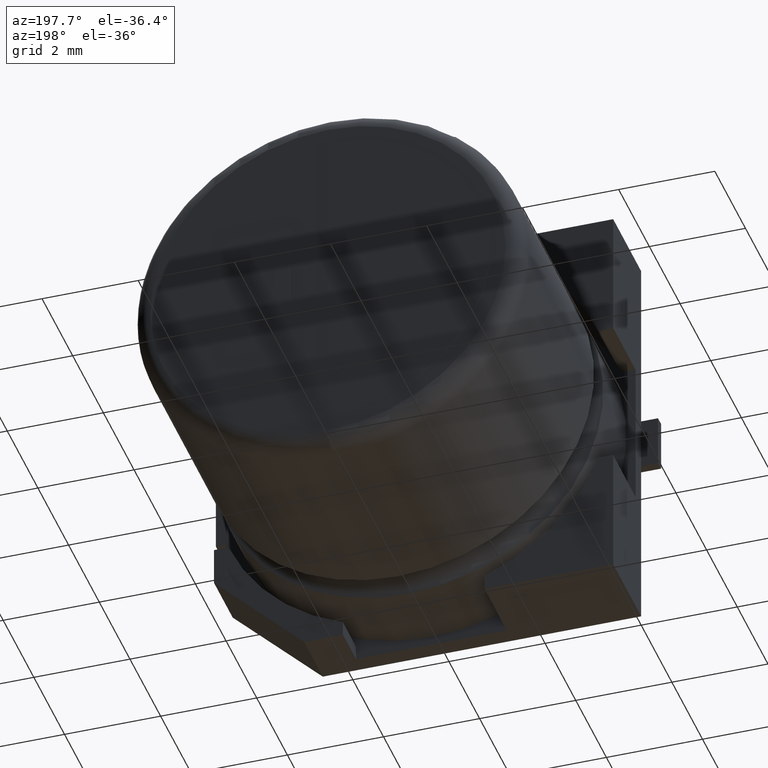
[diagram: clean part render]
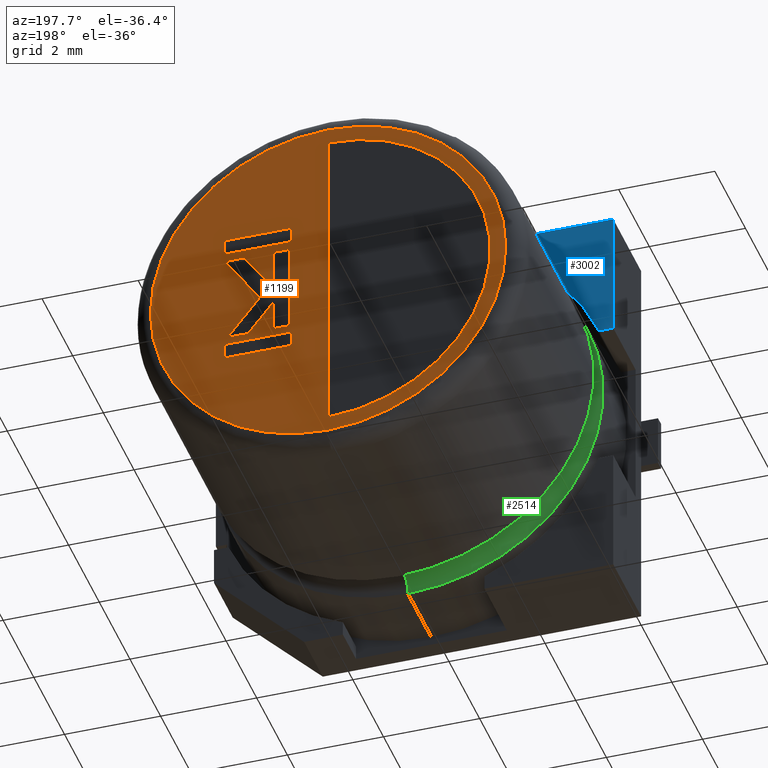
[diagram: same view with three faces highlighted in distinct colors, each labeled with its STEP entity id]
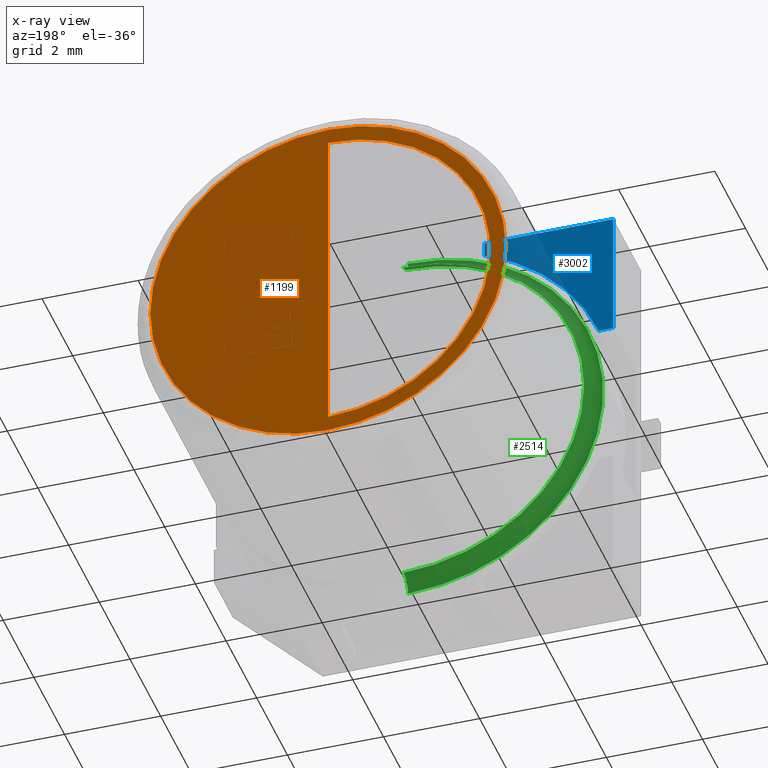
[diagram: x-ray of the same camera — body ghosted, the three highlighted faces saturated]
A machine part, auxiliary view with three faces highlighted in distinct colors.
The next image is the same camera in x-ray (body ghosted, the three faces saturated) — at least one of them is partly hidden behind the body in this view.
Their STEP definitions:

[orange] entity #1199 — the highlighted planar face has unit normal (0, 1, 0).
#22 = EDGE_CURVE ( 'NONE', #2037, #2241, #726, .T. ) ;
#61 = EDGE_CURVE ( 'NONE', #3004, #597, #2352, .T. ) ;
#131 = CARTESIAN_POINT ( 'NONE',  ( 4.250000000000000900, 7.099999999999999600, -7.947574999999998700 ) ) ;
#255 = EDGE_LOOP ( 'NONE', ( #2915, #1423 ) ) ;
#306 = CARTESIAN_POINT ( 'NONE',  ( 4.250000000000000000, 7.099999999999999600, -7.624967499999999500 ) ) ;
#362 = EDGE_LOOP ( 'NONE', ( #733, #555 ) ) ;
#491 = AXIS2_PLACEMENT_3D ( 'NONE', #1271, #1298, #1555 ) ;
#555 = ORIENTED_EDGE ( 'NONE', *, *, #1145, .T. ) ;
#597 = VERTEX_POINT ( 'NONE', #131 ) ;
#726 = CIRCLE ( 'NONE', #990, 3.374967499999999500 ) ;
#733 = ORIENTED_EDGE ( 'NONE', *, *, #61, .T. ) ;
#843 = EDGE_CURVE ( 'NONE', #2241, #2037, #2634, .T. ) ;
#920 = CARTESIAN_POINT ( 'NONE',  ( 4.250000000000000000, 7.099999999999999600, -4.250000000000000000 ) ) ;
#990 = AXIS2_PLACEMENT_3D ( 'NONE', #1109, #1885, #2170 ) ;
#1109 = CARTESIAN_POINT ( 'NONE',  ( 4.250000000000000000, 7.099999999999999600, -4.250000000000000000 ) ) ;
#1145 = EDGE_CURVE ( 'NONE', #597, #3004, #2811, .T. ) ;
#1178 = DIRECTION ( 'NONE',  ( 0.0000000000000000000, 0.0000000000000000000, 1.000000000000000000 ) ) ;
#1199 = ADVANCED_FACE ( 'NONE', ( #1601, #1352 ), #1985, .T. ) ;
#1271 = CARTESIAN_POINT ( 'NONE',  ( 4.250000000000000000, 7.099999999999999600, -4.250000000000000000 ) ) ;
#1298 = DIRECTION ( 'NONE',  ( 0.0000000000000000000, 1.000000000000000000, 0.0000000000000000000 ) ) ;
#1352 = FACE_BOUND ( 'NONE', #255, .T. ) ;
#1423 = ORIENTED_EDGE ( 'NONE', *, *, #843, .F. ) ;
#1441 = DIRECTION ( 'NONE',  ( 0.0000000000000000000, 1.000000000000000000, 0.0000000000000000000 ) ) ;
#1450 = CARTESIAN_POINT ( 'NONE',  ( 4.250000000000000000, 7.099999999999999600, -4.250000000000000000 ) ) ;
#1489 = AXIS2_PLACEMENT_3D ( 'NONE', #1450, #1441, #1178 ) ;
#1555 = DIRECTION ( 'NONE',  ( 0.0000000000000000000, -0.0000000000000000000, 1.000000000000000000 ) ) ;
#1601 = FACE_OUTER_BOUND ( 'NONE', #362, .T. ) ;
#1808 = DIRECTION ( 'NONE',  ( -0.0000000000000000000, -0.0000000000000000000, -1.000000000000000000 ) ) ;
#1822 = CARTESIAN_POINT ( 'NONE',  ( 4.250000000000000000, 7.099999999999999600, -7.624967499999999500 ) ) ;
#1885 = DIRECTION ( 'NONE',  ( 0.0000000000000000000, 1.000000000000000000, 0.0000000000000000000 ) ) ;
#1985 = PLANE ( 'NONE',  #491 ) ;
#2037 = VERTEX_POINT ( 'NONE', #306 ) ;
#2139 = AXIS2_PLACEMENT_3D ( 'NONE', #920, #3245, #2200 ) ;
#2170 = DIRECTION ( 'NONE',  ( 0.0000000000000000000, 0.0000000000000000000, 1.000000000000000000 ) ) ;
#2200 = DIRECTION ( 'NONE',  ( 0.0000000000000000000, 0.0000000000000000000, 1.000000000000000000 ) ) ;
#2230 = VECTOR ( 'NONE', #1808, 1000.000000000000000 ) ;
#2241 = VERTEX_POINT ( 'NONE', #2764 ) ;
#2352 = CIRCLE ( 'NONE', #2139, 3.697574999999999200 ) ;
#2634 = LINE ( 'NONE', #1822, #2230 ) ;
#2655 = CARTESIAN_POINT ( 'NONE',  ( 4.250000000000000000, 7.099999999999999600, -0.5524250000000013900 ) ) ;
#2764 = CARTESIAN_POINT ( 'NONE',  ( 4.250000000000000000, 7.099999999999999600, -0.8750325000000009900 ) ) ;
#2811 = CIRCLE ( 'NONE', #1489, 3.697574999999999200 ) ;
#2915 = ORIENTED_EDGE ( 'NONE', *, *, #22, .F. ) ;
#3004 = VERTEX_POINT ( 'NONE', #2655 ) ;
#3245 = DIRECTION ( 'NONE',  ( 0.0000000000000000000, 1.000000000000000000, 0.0000000000000000000 ) ) ;

[blue] entity #3002 — the highlighted planar face has unit normal (-0, 1, 0).
#59 = VECTOR ( 'NONE', #2558, 1000.000000000000000 ) ;
#320 = VERTEX_POINT ( 'NONE', #1868 ) ;
#525 = CIRCLE ( 'NONE', #1729, 4.250000000000000000 ) ;
#619 = VECTOR ( 'NONE', #1082, 1000.000000000000000 ) ;
#668 = VECTOR ( 'NONE', #2537, 1000.000000000000000 ) ;
#764 = DIRECTION ( 'NONE',  ( 0.0000000000000000000, 0.0000000000000000000, 1.000000000000000000 ) ) ;
#769 = CARTESIAN_POINT ( 'NONE',  ( 0.0000000000000000000, 1.825000000000000000, -2.681561285864186400 ) ) ;
#786 = ORIENTED_EDGE ( 'NONE', *, *, #1204, .F. ) ;
#823 = AXIS2_PLACEMENT_3D ( 'NONE', #2362, #2110, #2913 ) ;
#828 = CARTESIAN_POINT ( 'NONE',  ( 0.0000000000000000000, 1.825000000000000000, 0.0000000000000000000 ) ) ;
#881 = VECTOR ( 'NONE', #1028, 1000.000000000000000 ) ;
#939 = ORIENTED_EDGE ( 'NONE', *, *, #3014, .T. ) ;
#1006 = DIRECTION ( 'NONE',  ( 0.0000000000000000000, 1.000000000000000000, -0.0000000000000000000 ) ) ;
#1028 = DIRECTION ( 'NONE',  ( 0.0000000000000000000, 0.0000000000000000000, -1.000000000000000000 ) ) ;
#1082 = DIRECTION ( 'NONE',  ( -1.000000000000000000, 0.0000000000000000000, 1.445602896647339300E-015 ) ) ;
#1098 = EDGE_LOOP ( 'NONE', ( #786, #939, #2893, #2855, #1486 ) ) ;
#1106 = PLANE ( 'NONE',  #823 ) ;
#1204 = EDGE_CURVE ( 'NONE', #2151, #1791, #525, .T. ) ;
#1366 = CARTESIAN_POINT ( 'NONE',  ( -3.876472762382632000E-015, 1.825000000000000000, -2.681561285864186400 ) ) ;
#1428 = CARTESIAN_POINT ( 'NONE',  ( 0.2999999999999999300, 1.825000000000000000, -2.681561285864186800 ) ) ;
#1452 = LINE ( 'NONE', #2577, #881 ) ;
#1486 = ORIENTED_EDGE ( 'NONE', *, *, #3341, .F. ) ;
#1729 = AXIS2_PLACEMENT_3D ( 'NONE', #2331, #1006, #764 ) ;
#1760 = CARTESIAN_POINT ( 'NONE',  ( 2.681561285864188200, 1.825000000000000000, -0.0000000000000000000 ) ) ;
#1791 = VERTEX_POINT ( 'NONE', #2508 ) ;
#1818 = LINE ( 'NONE', #1366, #619 ) ;
#1868 = CARTESIAN_POINT ( 'NONE',  ( 2.681561285864188200, 1.825000000000000000, 0.0000000000000000000 ) ) ;
#2007 = VERTEX_POINT ( 'NONE', #828 ) ;
#2110 = DIRECTION ( 'NONE',  ( -0.0000000000000000000, 1.000000000000000000, 0.0000000000000000000 ) ) ;
#2133 = LINE ( 'NONE', #3333, #668 ) ;
#2151 = VERTEX_POINT ( 'NONE', #1428 ) ;
#2296 = FACE_OUTER_BOUND ( 'NONE', #1098, .T. ) ;
#2321 = EDGE_CURVE ( 'NONE', #2007, #2363, #1452, .T. ) ;
#2331 = CARTESIAN_POINT ( 'NONE',  ( 4.250000000000000000, 1.825000000000000000, -4.250000000000000000 ) ) ;
#2362 = CARTESIAN_POINT ( 'NONE',  ( 0.0000000000000000000, 1.825000000000000000, 0.0000000000000000000 ) ) ;
#2363 = VERTEX_POINT ( 'NONE', #769 ) ;
#2508 = CARTESIAN_POINT ( 'NONE',  ( 2.681561285864188200, 1.825000000000000000, -0.2999999999999999300 ) ) ;
#2537 = DIRECTION ( 'NONE',  ( 1.000000000000000000, 0.0000000000000000000, 0.0000000000000000000 ) ) ;
#2558 = DIRECTION ( 'NONE',  ( 0.0000000000000000000, 0.0000000000000000000, 1.000000000000000000 ) ) ;
#2566 = LINE ( 'NONE', #1760, #59 ) ;
#2577 = CARTESIAN_POINT ( 'NONE',  ( 0.0000000000000000000, 1.825000000000000000, 0.0000000000000000000 ) ) ;
#2718 = EDGE_CURVE ( 'NONE', #2007, #320, #2133, .T. ) ;
#2855 = ORIENTED_EDGE ( 'NONE', *, *, #2718, .T. ) ;
#2893 = ORIENTED_EDGE ( 'NONE', *, *, #2321, .F. ) ;
#2913 = DIRECTION ( 'NONE',  ( 0.0000000000000000000, -0.0000000000000000000, 1.000000000000000000 ) ) ;
#3002 = ADVANCED_FACE ( 'NONE', ( #2296 ), #1106, .T. ) ;
#3014 = EDGE_CURVE ( 'NONE', #2151, #2363, #1818, .T. ) ;
#3333 = CARTESIAN_POINT ( 'NONE',  ( 0.0000000000000000000, 1.825000000000000000, 0.0000000000000000000 ) ) ;
#3341 = EDGE_CURVE ( 'NONE', #1791, #320, #2566, .T. ) ;

[green] entity #2514 — the highlighted toroidal blend (fillet) surface has major radius 4.0626 mm and minor (blend) radius 0.303 mm.
#24 = CARTESIAN_POINT ( 'NONE',  ( 4.250000000000000000, 2.188540000000000200, -4.250000000000000000 ) ) ;
#28 = AXIS2_PLACEMENT_3D ( 'NONE', #2741, #2195, #2234 ) ;
#103 = CIRCLE ( 'NONE', #785, 4.062574999999998900 ) ;
#254 = CARTESIAN_POINT ( 'NONE',  ( 4.250000000000000000, 2.188540000000000200, -4.250000000000000000 ) ) ;
#264 = CIRCLE ( 'NONE', #3185, 3.759624999999998900 ) ;
#372 = FACE_OUTER_BOUND ( 'NONE', #1875, .T. ) ;
#393 = AXIS2_PLACEMENT_3D ( 'NONE', #3197, #958, #1069 ) ;
#442 = AXIS2_PLACEMENT_3D ( 'NONE', #254, #3160, #3171 ) ;
#443 = VERTEX_POINT ( 'NONE', #888 ) ;
#470 = CIRCLE ( 'NONE', #28, 0.3029500000000000500 ) ;
#585 = EDGE_CURVE ( 'NONE', #2334, #1710, #470, .T. ) ;
#679 = DIRECTION ( 'NONE',  ( -0.0000000000000000000, -1.000000000000000000, -0.0000000000000000000 ) ) ;
#785 = AXIS2_PLACEMENT_3D ( 'NONE', #923, #679, #2983 ) ;
#888 = CARTESIAN_POINT ( 'NONE',  ( 4.250000000000000000, 2.188540000000000200, -8.009624999999999800 ) ) ;
#923 = CARTESIAN_POINT ( 'NONE',  ( 4.250000000000000000, 1.885590000000000100, -4.250000000000000000 ) ) ;
#958 = DIRECTION ( 'NONE',  ( -1.000000000000000000, 0.0000000000000000000, 0.0000000000000000000 ) ) ;
#1069 = DIRECTION ( 'NONE',  ( 0.0000000000000000000, 0.0000000000000000000, 1.000000000000000000 ) ) ;
#1128 = EDGE_CURVE ( 'NONE', #2334, #2767, #103, .T. ) ;
#1255 = ORIENTED_EDGE ( 'NONE', *, *, #1290, .T. ) ;
#1290 = EDGE_CURVE ( 'NONE', #1710, #443, #264, .T. ) ;
#1698 = CIRCLE ( 'NONE', #393, 0.3029499999999997200 ) ;
#1710 = VERTEX_POINT ( 'NONE', #2222 ) ;
#1805 = ORIENTED_EDGE ( 'NONE', *, *, #2461, .F. ) ;
#1875 = EDGE_LOOP ( 'NONE', ( #3330, #1255, #1805, #3093 ) ) ;
#2051 = CARTESIAN_POINT ( 'NONE',  ( 4.250000000000000900, 1.885590000000000100, -0.1874250000000014800 ) ) ;
#2195 = DIRECTION ( 'NONE',  ( 1.000000000000000000, 0.0000000000000000000, -1.224646799147353200E-016 ) ) ;
#2222 = CARTESIAN_POINT ( 'NONE',  ( 4.250000000000000900, 2.188540000000000200, -0.4903750000000015600 ) ) ;
#2234 = DIRECTION ( 'NONE',  ( 0.0000000000000000000, 0.0000000000000000000, -1.000000000000000000 ) ) ;
#2253 = CARTESIAN_POINT ( 'NONE',  ( 4.250000000000000000, 1.885590000000000100, -8.312574999999998900 ) ) ;
#2263 = TOROIDAL_SURFACE ( 'NONE', #442, 4.062574999999998900, 0.3029500000000000500 ) ;
#2334 = VERTEX_POINT ( 'NONE', #2051 ) ;
#2461 = EDGE_CURVE ( 'NONE', #2767, #443, #1698, .T. ) ;
#2514 = ADVANCED_FACE ( 'NONE', ( #372 ), #2263, .F. ) ;
#2741 = CARTESIAN_POINT ( 'NONE',  ( 4.250000000000000900, 2.188540000000000200, -0.1874250000000014800 ) ) ;
#2767 = VERTEX_POINT ( 'NONE', #2253 ) ;
#2890 = DIRECTION ( 'NONE',  ( -0.0000000000000000000, -1.000000000000000000, -0.0000000000000000000 ) ) ;
#2983 = DIRECTION ( 'NONE',  ( 0.0000000000000000000, 0.0000000000000000000, -1.000000000000000000 ) ) ;
#3093 = ORIENTED_EDGE ( 'NONE', *, *, #1128, .F. ) ;
#3160 = DIRECTION ( 'NONE',  ( -0.0000000000000000000, -1.000000000000000000, -0.0000000000000000000 ) ) ;
#3171 = DIRECTION ( 'NONE',  ( 0.0000000000000000000, 0.0000000000000000000, -1.000000000000000000 ) ) ;
#3177 = DIRECTION ( 'NONE',  ( 0.0000000000000000000, 0.0000000000000000000, -1.000000000000000000 ) ) ;
#3185 = AXIS2_PLACEMENT_3D ( 'NONE', #24, #2890, #3177 ) ;
#3197 = CARTESIAN_POINT ( 'NONE',  ( 4.250000000000000000, 2.188540000000000200, -8.312574999999998900 ) ) ;
#3330 = ORIENTED_EDGE ( 'NONE', *, *, #585, .T. ) ;